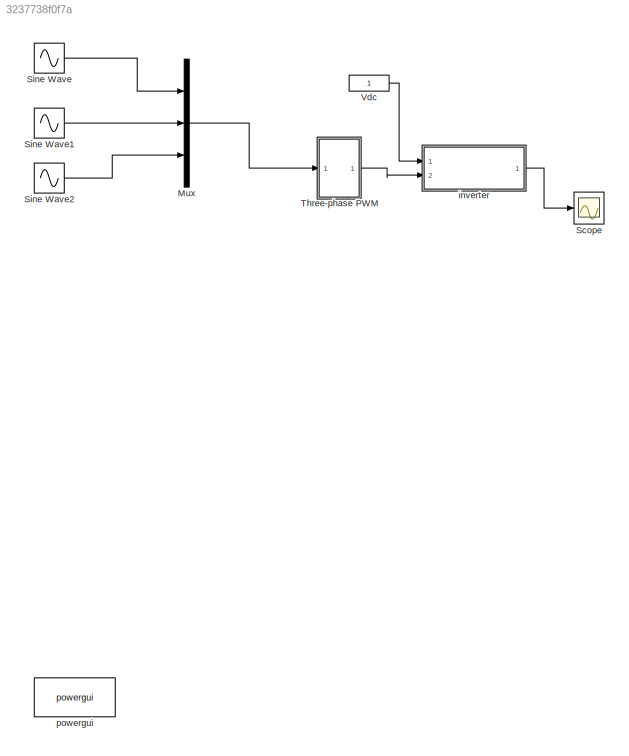
MODEL slx_3237738f0f7a
KIND model
CONFIG AbsTol = auto
CONFIG EnableMultiTasking = off
CONFIG FixedStep = 1e-6
CONFIG MaxStep = auto
CONFIG MinStep = auto
CONFIG RelTol = 1e-3
CONFIG SampleTimeConstraint = Unconstrained
CONFIG Solver = FixedStepAuto
CONFIG SolverName = FixedStepAuto
CONFIG StartTime = 0.0
CONFIG StopTime = 1
BLOCK [Mux] Mux
  DisplayOption = bar
  Inputs = 3
  Ports = [3, 1]
BLOCK [Scope] Scope
  Floating = off
  NumInputPorts = 1
  Ports = [1]
  ScopeSpecificationString = Simulink.scopes.TimeScopeBlockCfg('CurrentConfiguration', extmgr.ConfigurationSet(extmgr.Configuration('Core','General UI',true),extmgr.Configuration('Core','Source UI',true),extmgr.Configuration('Sources','WiredSimulink',true,'DataLoggingVariableName','ScopeData3'),extmgr.Configuration('Visuals','Time Domain',true),extmgr.Configuration('Tools','Plot Navigation',true),extmgr.Configuration('Tools',...<+40ch>
BLOCK [Sin] Sine Wave
  Frequency = 2*pi*60
  Ports = [0, 1]
  SampleTime = 0
BLOCK [Sin] Sine Wave1
  Frequency = 2*pi*60
  Phase = 2*pi/3
  Ports = [0, 1]
  SampleTime = 0
BLOCK [Sin] Sine Wave2
  Frequency = 2*pi*60
  Phase = 4*pi/3
  Ports = [0, 1]
  SampleTime = 0
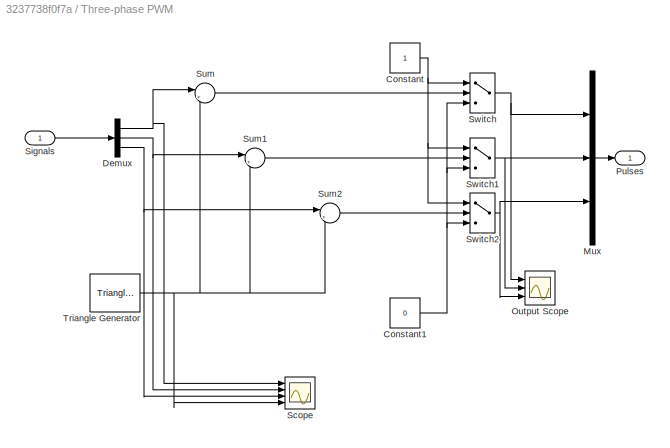
BLOCK [SubSystem] Three-phase PWM
  Ports = [1, 1]
  RequestExecContextInheritance = off
BLOCK [Constant] Three-phase PWM/Constant
BLOCK [Constant] Three-phase PWM/Constant1
  Value = 0
BLOCK [Demux] Three-phase PWM/Demux
  Outputs = 3
  Ports = [1, 3]
BLOCK [Mux] Three-phase PWM/Mux
  DisplayOption = bar
  Inputs = 3
  Ports = [3, 1]
BLOCK [Scope] Three-phase PWM/Output Scope
  Floating = off
  NumInputPorts = 3
  Ports = [3]
  ScopeSpecificationString = Simulink.scopes.TimeScopeBlockCfg('CurrentConfiguration', extmgr.ConfigurationSet(extmgr.Configuration('Core','General UI',true),extmgr.Configuration('Core','Source UI',true),extmgr.Configuration('Sources','WiredSimulink',true,'DataLoggingVariableName','ScopeData1','DataLoggingSaveFormat','StructureWithTime','DataLoggingDecimation','1','DataLoggingDecimateData',true),extmgr.Configuration('Visuals'...<+3028ch>
BLOCK [Outport] Three-phase PWM/Pulses
BLOCK [Scope] Three-phase PWM/Scope
  Floating = off
  NumInputPorts = 4
  Ports = [4]
  ScopeSpecificationString = Simulink.scopes.TimeScopeBlockCfg('CurrentConfiguration', extmgr.ConfigurationSet(extmgr.Configuration('Core','General UI',true),extmgr.Configuration('Core','Source UI',true),extmgr.Configuration('Sources','WiredSimulink',true,'DataLoggingVariableName','ScopeData1'),extmgr.Configuration('Visuals','Time Domain',true,'SerializedDisplays',{struct('MinYLimReal','-1.25','MaxYLimReal','1.25','YLabelReal...<+1435ch>
BLOCK [Inport] Three-phase PWM/Signals
BLOCK [Sum] Three-phase PWM/Sum
  Inputs = |+-
  Ports = [2, 1]
BLOCK [Sum] Three-phase PWM/Sum1
  Inputs = |+-
  Ports = [2, 1]
BLOCK [Sum] Three-phase PWM/Sum2
  Inputs = |+-
  Ports = [2, 1]
BLOCK [Switch] Three-phase PWM/Switch
  Criteria = u2 > Threshold
  InputSameDT = off
  SaturateOnIntegerOverflow = off
BLOCK [Switch] Three-phase PWM/Switch1
  Criteria = u2 > Threshold
  InputSameDT = off
  SaturateOnIntegerOverflow = off
BLOCK [Switch] Three-phase PWM/Switch2
  Criteria = u2 > Threshold
  InputSameDT = off
  SaturateOnIntegerOverflow = off
BLOCK [Reference] Three-phase PWM/Triangle Generator  REF=powerlib_meascontrol/Pulse & Signal
Generators/Triangle
Generator
  Ports = [0, 1]
  SourceBlock = powerlib_meascontrol/Pulse & Signal\nGenerators/Triangle\nGenerator
  SourceProductBaseCode = PS
  SourceType = Triangle Generator
BLOCK [Constant] Vdc
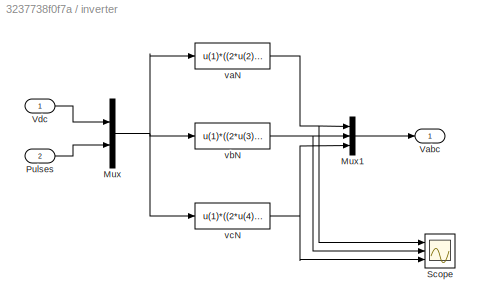
BLOCK [SubSystem] inverter
  Ports = [2, 1]
  RequestExecContextInheritance = off
BLOCK [Mux] inverter/Mux
  DisplayOption = bar
  Inputs = 2
  Ports = [2, 1]
BLOCK [Mux] inverter/Mux1
  DisplayOption = bar
  Inputs = 3
  Ports = [3, 1]
BLOCK [Inport] inverter/Pulses
  Port = 2
BLOCK [Scope] inverter/Scope
  Floating = off
  NumInputPorts = 3
  Ports = [3]
  ScopeSpecificationString = Simulink.scopes.TimeScopeBlockCfg('CurrentConfiguration', extmgr.ConfigurationSet(extmgr.Configuration('Core','General UI',true),extmgr.Configuration('Core','Source UI',true),extmgr.Configuration('Sources','WiredSimulink',true,'DataLoggingVariableName','ScopeData2'),extmgr.Configuration('Visuals','Time Domain',true,'SerializedDisplays',{struct('MinYLimReal','-0.91667','MaxYLimReal','1.58333','YLab...<+2993ch>
BLOCK [Outport] inverter/Vabc
BLOCK [Inport] inverter/Vdc
BLOCK [Fcn] inverter/vaN
  Expr = u(1)*((2*u(2))-u(3)-u(4))/3
BLOCK [Fcn] inverter/vbN
  Expr = u(1)*((2*u(3))-u(2)-u(4))/3
BLOCK [Fcn] inverter/vcN
  Expr = u(1)*((2*u(4))-u(3)-u(2))/3
BLOCK [Reference] powergui  REF=powerlib/powergui
  Ports = []
  Priority = 1
  SourceBlock = powerlib/powergui
  SourceProductBaseCode = PS
  SourceType = PSB option menu block
LINE Mux:1 -> Three-phase PWM:1
LINE Sine Wave1:1 -> Mux:2
LINE Sine Wave2:1 -> Mux:3
LINE Sine Wave:1 -> Mux:1
NET Three-phase PWM/Constant1:1 -> Three-phase PWM/Switch1:3, Three-phase PWM/Switch2:3, Three-phase PWM/Switch:3
NET Three-phase PWM/Constant:1 -> Three-phase PWM/Switch1:1, Three-phase PWM/Switch2:1, Three-phase PWM/Switch:1
NET Three-phase PWM/Demux:1 -> Three-phase PWM/Scope:1, Three-phase PWM/Sum:1
NET Three-phase PWM/Demux:2 -> Three-phase PWM/Scope:2, Three-phase PWM/Sum1:1
NET Three-phase PWM/Demux:3 -> Three-phase PWM/Scope:3, Three-phase PWM/Sum2:1
LINE Three-phase PWM/Mux:1 -> Three-phase PWM/Pulses:1
LINE Three-phase PWM/Signals:1 -> Three-phase PWM/Demux:1
LINE Three-phase PWM/Sum1:1 -> Three-phase PWM/Switch1:2
LINE Three-phase PWM/Sum2:1 -> Three-phase PWM/Switch2:2
LINE Three-phase PWM/Sum:1 -> Three-phase PWM/Switch:2
NET Three-phase PWM/Switch1:1 -> Three-phase PWM/Mux:2, Three-phase PWM/Output Scope:2
NET Three-phase PWM/Switch2:1 -> Three-phase PWM/Mux:3, Three-phase PWM/Output Scope:3
NET Three-phase PWM/Switch:1 -> Three-phase PWM/Mux:1, Three-phase PWM/Output Scope:1
NET Three-phase PWM/Triangle Generator:1 -> Three-phase PWM/Scope:4, Three-phase PWM/Sum1:2, Three-phase PWM/Sum2:2, Three-phase PWM/Sum:2
LINE Three-phase PWM:1 -> inverter:2
LINE Vdc:1 -> inverter:1
LINE inverter/Mux1:1 -> inverter/Vabc:1
NET inverter/Mux:1 -> inverter/vaN:1, inverter/vbN:1, inverter/vcN:1
LINE inverter/Pulses:1 -> inverter/Mux:2
LINE inverter/Vdc:1 -> inverter/Mux:1
NET inverter/vaN:1 -> inverter/Mux1:1, inverter/Scope:1
NET inverter/vbN:1 -> inverter/Mux1:2, inverter/Scope:2
NET inverter/vcN:1 -> inverter/Mux1:3, inverter/Scope:3
LINE inverter:1 -> Scope:1
note: NET lines group one-source signal fan-out (src -> all destinations, sorted); 1:1 wires keep LINE
